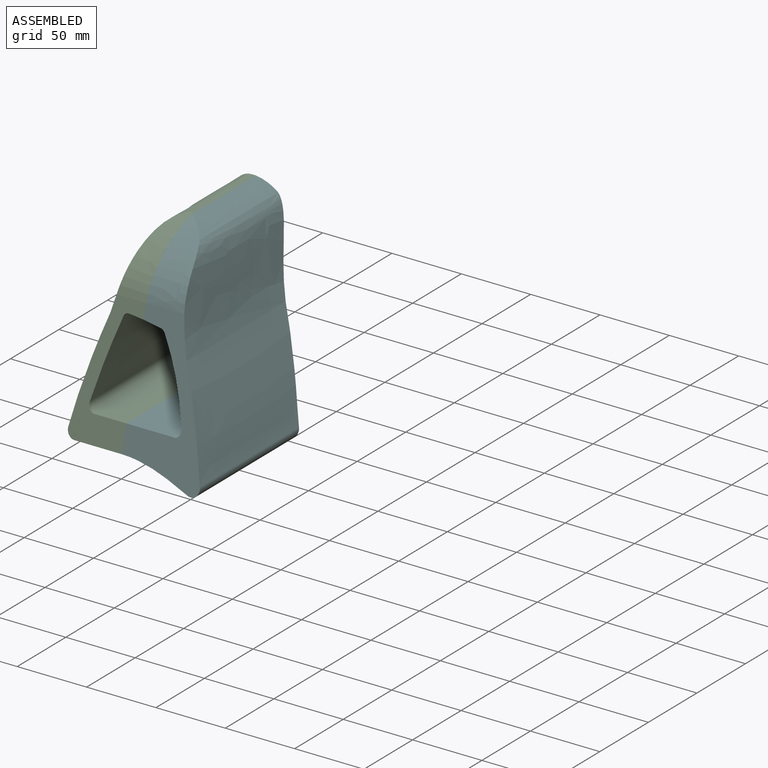
[diagram: assembled view]
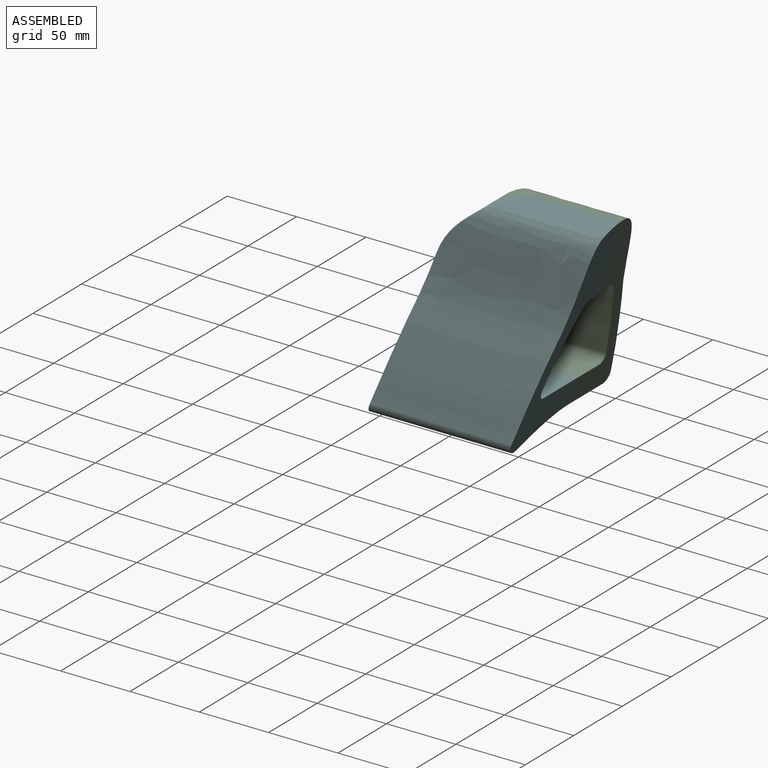
[diagram: assembled view, second angle]
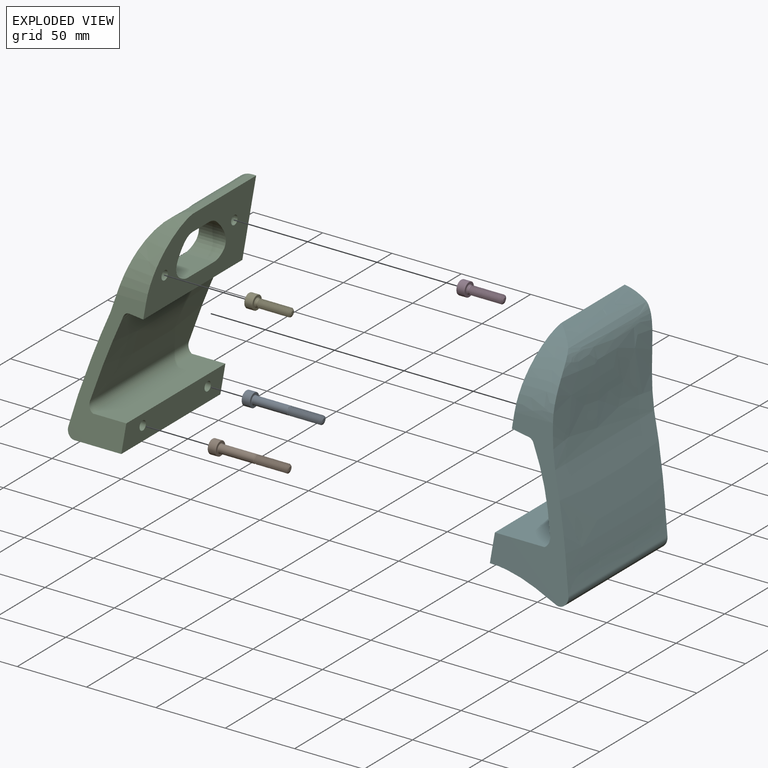
[diagram: exploded view]
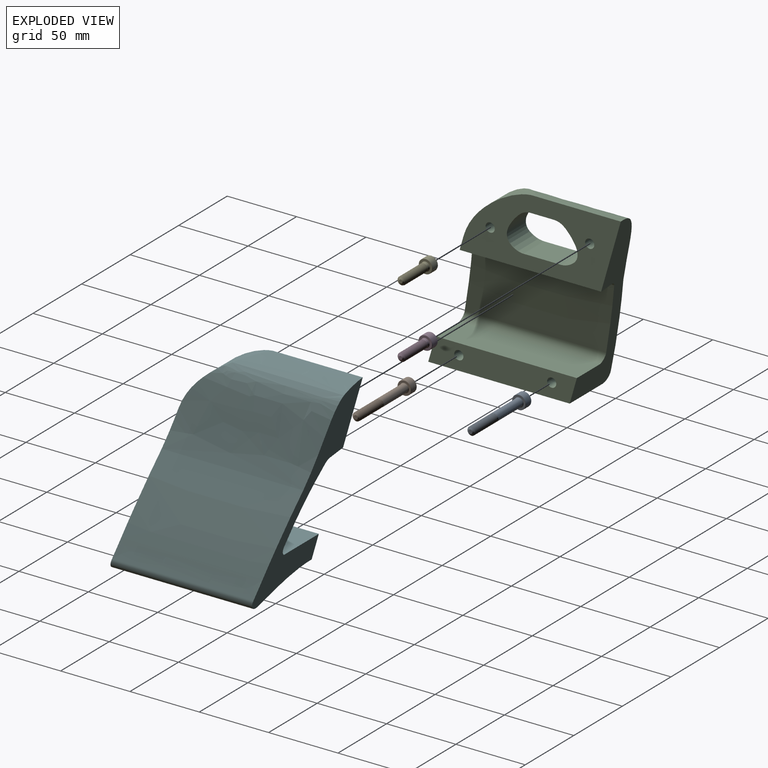
[diagram: exploded view, second angle]
ASSEMBLY  parts=6 mates=5
PART A: 36 faces, bbox 10.8x10.8x56 mm
  f0: plane 8.8x8.8mm, normal (0,0,1), area 34.6mm2, adj f15,f30,f31,f32,f33,f34,f35
  f1: cylinder r=3mm len=22.7mm, axis (0,0,-1), area -115.3mm2, adj f7,f8,f9,f10,f12
  f2: cylinder r=2.5mm len=5mm, axis (0,0,-1), area 1.3mm2, adj f8,f9,f12,f14
  f3: plane 2.88x2.88mm, normal (0,0,-1), area 6.5mm2, adj f7
  f4: cylinder r=5mm len=10mm, axis (0,0,-1), area 163.4mm2, adj f15,f16
  f5: plane 9.6x9.6mm, normal (0,0,-1), area 36.1mm2, adj f13,f16
  f6: cylinder r=3mm len=25.1mm, axis (0,0,-1), area 473.1mm2, adj f13,f14
  f7: cone r=1.44mm half-angle=60deg, axis (0,0,1), area 17.9mm2, adj f1,f3,f10,f11,f12
  f8: cone r=3mm half-angle=60deg, axis (0,0,-1), area 3.8mm2, adj f1,f2,f9,f12
  f9: plane 0.93x0.74mm, normal (0,-1,0), area 0.1mm2, adj f1,f2,f8,f10,f11,f12,f14
  f10: bspline ~24.07x6.93mm, area 308.5mm2, adj f1,f7,f9,f11
  f11: bspline ~23.95x5.32mm, area 49.5mm2, adj f7,f9,f10,f12
  f12: bspline ~24.23x6.93mm, area 312.4mm2, adj f1,f2,f7,f8,f9,f11,f14
  f13: torus R=3.4mm, axis (0,0,-1), area 12.4mm2, adj f5,f6
  f14: cone r=2.5mm half-angle=45deg, axis (0,0,1), area 11mm2, adj f2,f6,f9,f12
  f15: torus R=4.4mm, axis (0,0,1), area 28.3mm2, adj f0,f4
  f16: torus R=4.8mm, axis (0,0,-1), area 9.7mm2, adj f4,f5
  f17: plane 3.1x2.94mm, normal (1,0,0), area 9.1mm2, adj f18,f22,f28,f32
  f18: plane 3.1x2.55mm, normal (0.5,0.87,0), area 9.1mm2, adj f17,f19,f29,f34
  f19: plane 3.1x2.55mm, normal (-0.5,0.87,0), area 9.1mm2, adj f18,f20,f27,f35
  f20: plane 3.1x2.94mm, normal (-1,0,0), area 9.1mm2, adj f19,f21,f25,f33
  f21: plane 3.1x2.55mm, normal (-0.5,-0.87,0), area 9.1mm2, adj f20,f22,f24,f31
  f22: plane 3.1x2.55mm, normal (0.5,-0.87,0), area 9.1mm2, adj f17,f21,f26,f30
  f23: plane 5.43x4.7mm, normal (0,0,1), area 19.1mm2, adj f24,f25,f26,f27,f28,f29
  f24: plane 2.55x1.59mm, normal (-0.35,-0.61,0.71), area 0.8mm2, adj f21,f23,f25,f26
  f25: plane 2.94x0.2mm, normal (-0.71,0,0.71), area 0.8mm2, adj f20,f23,f24,f27
  f26: plane 2.55x1.59mm, normal (0.35,-0.61,0.71), area 0.8mm2, adj f22,f23,f24,f28
  f27: plane 2.55x1.59mm, normal (-0.35,0.61,0.71), area 0.8mm2, adj f19,f23,f25,f29
  f28: plane 2.94x0.2mm, normal (0.71,0,0.71), area 0.8mm2, adj f17,f23,f26,f29
  f29: plane 2.55x1.59mm, normal (0.35,0.61,0.71), area 0.8mm2, adj f18,f23,f27,f28
  f30: plane 2.75x1.7mm, normal (0.35,-0.61,0.71), area 0.9mm2, adj f0,f22,f31,f32
  f31: plane 2.75x1.7mm, normal (-0.35,-0.61,0.71), area 0.9mm2, adj f0,f21,f30,f33
  f32: plane 3.18x0.2mm, normal (0.71,0,0.71), area 0.9mm2, adj f0,f17,f30,f34
  f33: plane 3.18x0.2mm, normal (-0.71,0,0.71), area 0.9mm2, adj f0,f20,f31,f35
  f34: plane 2.75x1.7mm, normal (0.35,0.61,0.71), area 0.9mm2, adj f0,f18,f32,f35
  f35: plane 2.75x1.7mm, normal (-0.35,0.61,0.71), area 0.9mm2, adj f0,f19,f33,f34
PART B: same geometry as A
PART C: 31 faces, bbox 40.6x139.8x129.5 mm
  f0: extruded ~116.57x50.8mm, area 4139.5mm2, adj f3,f7,f11,f12,f13,f14,f15,f16
  f1: cylinder r=6mm len=104mm, axis (0,1,0), area 1028.8mm2, adj f2,f10,f11,f12,f19,f22
  f2: plane 108.02x19.73mm, normal (-0.99,0,0.16), area 1817.7mm2, adj f1,f3,f11,f12,f19,f22
  f3: extruded ~116.78x51.54mm, area 5424.2mm2, adj f0,f2,f11,f12
  f4: extruded ~116.52x50.65mm, area 5330.5mm2, adj f5,f6,f11,f12
  f5: cylinder r=6mm len=103.84mm, axis (0,1,0), area 796.6mm2, adj f4,f9,f11,f12
  f6: extruded ~103.42x4.94mm, area 712.8mm2, adj f4,f8,f11,f12
  f7: extruded ~50.69x39.73mm, area 1014.5mm2, adj f0,f11,f17
  f8: extruded ~102.3x10.76mm, area 1102.6mm2, adj f6,f11,f12,f17
  f9: plane 102x24.13mm, normal (0,0,1), area 2461.4mm2, adj f5,f11,f12,f18
  f10: plane 102x33.6mm, normal (0,0,-1), area 3427mm2, adj f1,f11,f12,f18
  f11: plane 89.81x40.59mm, normal (0,-0.96,0.28), area 1537.4mm2, adj f0,f1,f2,f3,f4,f5,f6,f7
  f12: plane 129.53x40.59mm, normal (0,0.96,-0.28), area 2238.2mm2, adj f0,f1,f2,f3,f4,f5,f6,f8
  f13: plane 27.13x21.2mm, normal (0,0,1), area 575.3mm2, adj f0,f14,f16,f17
  f14: extruded ~27.98x21.2mm, area 823.3mm2, adj f0,f13,f15,f17
  f15: plane 16.5x15.9mm, normal (0,0,-1), area 262.3mm2, adj f0,f14,f16,f17
  f16: extruded ~27.98x21.2mm, area 823.3mm2, adj f0,f13,f15,f17
  f17: plane 116.19x49.6mm, normal (1,0,0), area 3400.9mm2, adj f0,f7,f8,f11,f12,f13,f14,f15
  f18: plane 107.16x18mm, normal (1,0,0), area 1767.6mm2, adj f9,f10,f11,f12,f20,f23
  f19: cylinder r=5.62mm len=11.25mm, axis (-1,0,0), area 283.6mm2, adj f1,f2,f21
  f20: cylinder r=3.3mm len=31mm, axis (-1,0,0), area 642.7mm2, adj f18,f21
  f21: plane 11.25x11.25mm, normal (-1,0,0), area 65.2mm2, adj f19,f20
  f22: cylinder r=5.62mm len=11.25mm, axis (-1,0,0), area 283.6mm2, adj f1,f2,f24
  f23: cylinder r=3.3mm len=31mm, axis (-1,0,0), area 642.7mm2, adj f18,f24
  f24: plane 11.25x11.25mm, normal (-1,0,0), area 65.2mm2, adj f22,f23
  f25: cylinder r=3.3mm len=11.5mm, axis (-1,0,0), area 238.3mm2, adj f17,f26
  f26: plane 11.25x11.25mm, normal (-1,0,0), area 65.2mm2, adj f25,f27
  f27: cylinder r=5.62mm len=11.25mm, axis (-1,0,0), area 280.9mm2, adj f0,f26
  f28: cylinder r=3.3mm len=11.5mm, axis (-1,0,0), area 238.3mm2, adj f17,f29
  f29: plane 11.25x11.25mm, normal (-1,0,0), area 65.2mm2, adj f28,f30
  f30: cylinder r=5.62mm len=11.25mm, axis (-1,0,0), area 227.2mm2, adj f0,f29
PART D: 36 faces, bbox 10.8x10.8x31.5 mm
  f0: plane 8.8x8.8mm, normal (0,0,1), area 34.6mm2, adj f15,f24,f25,f26,f27,f28,f29
  f1: cylinder r=2.5mm len=5mm, axis (0,0,-1), area 4.1mm2, adj f8,f9,f10,f11,f13
  f2: cylinder r=3mm len=22.5mm, axis (0,0,-1), area 23.2mm2, adj f7,f8,f9,f10
  f3: plane 2.54x2.54mm, normal (0,0,-1), area 5.1mm2, adj f7
  f4: cylinder r=5mm len=10mm, axis (0,0,-1), area 163.4mm2, adj f15,f16
  f5: plane 9.6x9.6mm, normal (0,0,-1), area 38.2mm2, adj f14,f16
  f6: cylinder r=3mm len=6mm, axis (0,0,-1), area 3.8mm2, adj f13,f14
  f7: cone r=1.27mm half-angle=60deg, axis (0,0,1), area 19.6mm2, adj f2,f3,f9,f10,f12
  f8: cone r=3mm half-angle=60deg, axis (0,0,-1), area 3.6mm2, adj f1,f2,f9,f10
  f9: bspline ~24.06x6.93mm, area 300.7mm2, adj f1,f2,f7,f8,f11,f12
  f10: bspline ~24.23x6.93mm, area 301.8mm2, adj f1,f2,f7,f8,f11,f12,f13
  f11: plane 0.35x0.23mm, normal (0,-1,0), area 0mm2, adj f1,f9,f10,f12,f13
  f12: bspline ~23.97x5.36mm, area 56.5mm2, adj f7,f9,f10,f11
  f13: torus R=3.5mm, axis (0,0,1), area 17.5mm2, adj f1,f6,f10,f11
  f14: torus R=3.3mm, axis (0,0,-1), area 9.2mm2, adj f5,f6
  f15: torus R=4.4mm, axis (0,0,1), area 28.3mm2, adj f0,f4
  f16: torus R=4.8mm, axis (0,0,-1), area 9.7mm2, adj f4,f5
  f17: plane 3.1x2.94mm, normal (1,0,0), area 9.1mm2, adj f18,f22,f25,f34
  f18: plane 3.1x2.55mm, normal (0.5,0.87,0), area 9.1mm2, adj f17,f19,f24,f35
  f19: plane 3.1x2.55mm, normal (-0.5,0.87,0), area 9.1mm2, adj f18,f20,f26,f33
  f20: plane 3.1x2.94mm, normal (-1,0,0), area 9.1mm2, adj f19,f21,f28,f31
  f21: plane 3.1x2.55mm, normal (-0.5,-0.87,0), area 9.1mm2, adj f20,f22,f29,f30
  f22: plane 3.1x2.55mm, normal (0.5,-0.87,0), area 9.1mm2, adj f17,f21,f27,f32
  f23: plane 5.43x4.7mm, normal (0,0,1), area 19.1mm2, adj f30,f31,f32,f33,f34,f35
  f24: plane 2.75x1.7mm, normal (0.35,0.61,0.71), area 0.9mm2, adj f0,f18,f25,f26
  f25: plane 3.18x0.2mm, normal (0.71,0,0.71), area 0.9mm2, adj f0,f17,f24,f27
  f26: plane 2.75x1.7mm, normal (-0.35,0.61,0.71), area 0.9mm2, adj f0,f19,f24,f28
  f27: plane 2.75x1.7mm, normal (0.35,-0.61,0.71), area 0.9mm2, adj f0,f22,f25,f29
  f28: plane 3.18x0.2mm, normal (-0.71,0,0.71), area 0.9mm2, adj f0,f20,f26,f29
  f29: plane 2.75x1.7mm, normal (-0.35,-0.61,0.71), area 0.9mm2, adj f0,f21,f27,f28
  f30: plane 2.55x1.59mm, normal (-0.35,-0.61,0.71), area 0.8mm2, adj f21,f23,f31,f32
  f31: plane 2.94x0.2mm, normal (-0.71,0,0.71), area 0.8mm2, adj f20,f23,f30,f33
  f32: plane 2.55x1.59mm, normal (0.35,-0.61,0.71), area 0.8mm2, adj f22,f23,f30,f34
  f33: plane 2.55x1.59mm, normal (-0.35,0.61,0.71), area 0.8mm2, adj f19,f23,f31,f35
  f34: plane 2.94x0.2mm, normal (0.71,0,0.71), area 0.8mm2, adj f17,f23,f32,f35
  f35: plane 2.55x1.59mm, normal (0.35,0.61,0.71), area 0.8mm2, adj f18,f23,f33,f34
PART E: same geometry as D
PART F: 30 faces, bbox 60.7x145.2x144.1 mm
  f0: plane 107.16x18mm, normal (-1,0,0), area 1791.8mm2, adj f4,f5,f8,f13,f27,f29
  f1: plane 116.2x49.6mm, normal (-1,0,0), area 3425.2mm2, adj f3,f4,f5,f9,f16,f18,f19,f20
  f2: extruded ~119.17x59.89mm, area 6114.9mm2, adj f3,f4,f5,f6,f16
  f3: extruded ~82.32x17mm, area 1304.7mm2, adj f1,f2,f4,f16
  f4: plane 144.01x60.74mm, normal (0,0.96,-0.28), area 3248.6mm2, adj f0,f1,f2,f3,f6,f7,f8,f9
  f5: plane 104.39x60.75mm, normal (0,-0.96,0.28), area 2338.6mm2, adj f0,f1,f2,f6,f7,f8,f9,f10
  f6: extruded ~117.77x54.98mm, area 5947.7mm2, adj f2,f4,f5,f12
  f7: cylinder r=6mm len=103.84mm, axis (0,1,0), area 758.1mm2, adj f4,f5,f8,f15
  f8: plane 102x35.86mm, normal (0,0,1), area 3657.6mm2, adj f0,f4,f5,f7
  f9: extruded ~102.55x13mm, area 1339.8mm2, adj f1,f4,f5,f10
  f10: extruded ~103x4.06mm, area 564.6mm2, adj f4,f5,f9,f15
  f11: extruded ~105.7x12.89mm, area 1372.9mm2, adj f4,f5,f12,f14
  f12: plane 102.15x0.52mm, normal (0.96,0,0.27), area 55.4mm2, adj f4,f5,f6,f11
  f13: extruded ~105.58x50.4mm, area 5329.6mm2, adj f0,f4,f5,f14
  f14: cylinder r=5.59mm len=103.99mm, axis (0,1,0), area 1290mm2, adj f4,f5,f11,f13
  f15: extruded ~116.09x49.12mm, area 5493.2mm2, adj f4,f5,f7,f10
  f16: extruded ~48.58x39.63mm, area 1219.9mm2, adj f1,f2,f3,f5
  f17: plane 50.99x27.98mm, normal (-1,0,0), area 1201.8mm2, adj f18,f19,f20,f21
  f18: plane 27.13x17mm, normal (0,0,1), area 461.2mm2, adj f1,f17,f19,f21
  f19: extruded ~27.98x17.24mm, area 746.8mm2, adj f1,f17,f18,f20
  f20: plane 17x16.5mm, normal (0,0,-1), area 280.4mm2, adj f1,f17,f19,f21
  f21: extruded ~27.98x17.24mm, area 746.8mm2, adj f1,f17,f18,f20
  f22: cone r=0mm half-angle=59deg, axis (-1,0,0), area 25.7mm2, adj f23
  f23: cylinder r=2.65mm len=15mm, axis (-1,0,0), area 249.7mm2, adj f1,f22
  f24: cone r=0mm half-angle=59deg, axis (-1,0,0), area 25.7mm2, adj f25
  f25: cylinder r=2.65mm len=15mm, axis (-1,0,0), area 249.7mm2, adj f1,f24
  f26: cone r=0mm half-angle=59deg, axis (-1,0,0), area 25.7mm2, adj f27
  f27: cylinder r=2.65mm len=25mm, axis (-1,0,0), area 416.2mm2, adj f0,f26
  f28: cone r=0mm half-angle=59deg, axis (-1,0,0), area 25.7mm2, adj f29
  f29: cylinder r=2.65mm len=25mm, axis (-1,0,0), area 416.2mm2, adj f0,f28
PLACE A rot(axis=(0.16,-0.97,-0.16),91.5deg) t=(-36.99,88.98,10.18)mm
PLACE B rot(axis=(-0.56,-0.61,0.56),116.9deg) t=(-36.99,22.05,10.18)mm
PLACE C rot(axis=(1,0,0),0deg) t=(0,82.16,65.33)mm
PLACE D rot(axis=(0.32,-0.89,-0.32),96.5deg) t=(-17.5,148.14,69.4)mm
PLACE E rot(axis=(-0.64,-0.43,0.64),133.5deg) t=(-17.5,-1.63,118.3)mm
PLACE F rot(axis=(1,0,0),0deg) t=(-0.01,82.16,65.33)mm fixed
MATE slider C.f18 <-> F.f0  axis (1,0,0) through (0,0,0)mm
MATE cylindrical D.f1 <-> C.f28  axis (1,0,0) through (-11.5,116.41,108.05)mm
MATE cylindrical A.f1 <-> C.f22  axis (1,0,0) through (-30.99,88.98,10.18)mm
MATE cylindrical B.f1 <-> C.f19  axis (1,0,0) through (-30.99,22.05,10.18)mm
MATE cylindrical E.f1 <-> C.f25  axis (1,0,0) through (-11.5,44.67,99.43)mm
